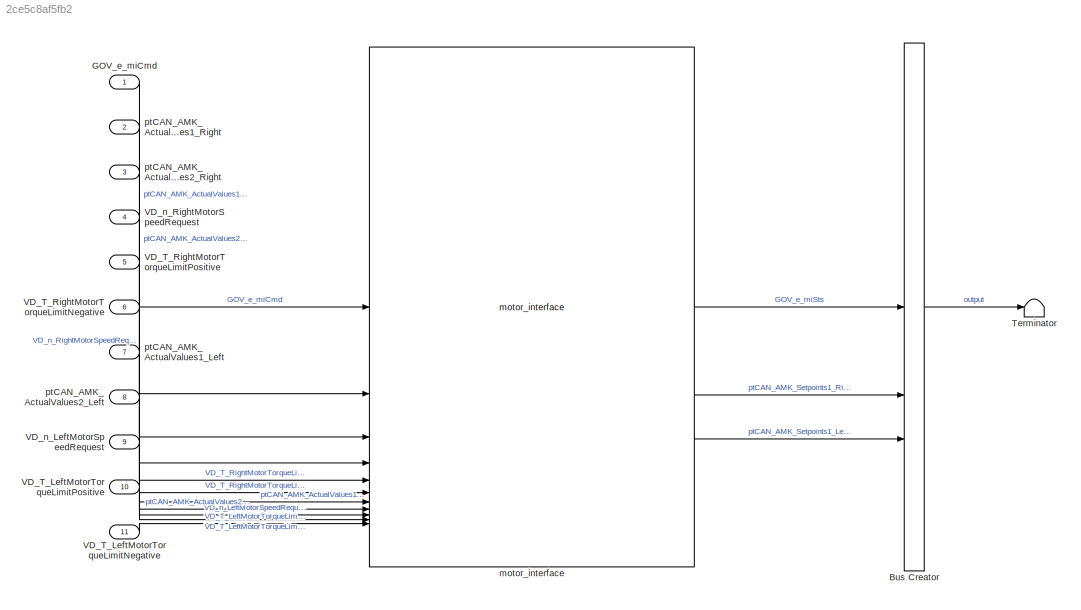
MODEL slx_2ce5c8af5fb2
KIND model
CONFIG AbsTol = auto
CONFIG EnableMultiTasking = off
CONFIG FixedStep = 1e-3
CONFIG MaxStep = auto
CONFIG MinStep = auto
CONFIG RelTol = 1e-3
CONFIG SampleTimeConstraint = Unconstrained
CONFIG SolverName = FixedStepAuto
CONFIG StartTime = 0.0
CONFIG StopTime = 10.0
BLOCK [BusCreator] Bus Creator
  DisplayOption = bar
  InheritFromInputs = on
  Inputs = 3
BLOCK [Inport] GOV_e_miCmd
  Interpolate = off
BLOCK [Terminator] Terminator
BLOCK [Inport] VD_T_LeftMotorTorqueLimitNegative
  OutDataTypeStr = single
  Port = 11
BLOCK [Inport] VD_T_LeftMotorTorqueLimitPositive
  OutDataTypeStr = single
  Port = 10
BLOCK [Inport] VD_T_RightMotorTorqueLimitNegative
  OutDataTypeStr = single
  Port = 6
BLOCK [Inport] VD_T_RightMotorTorqueLimitPositive
  OutDataTypeStr = single
  Port = 5
BLOCK [Inport] VD_n_LeftMotorSpeedRequest
  OutDataTypeStr = single
  Port = 9
BLOCK [Inport] VD_n_RightMotorSpeedRequest
  OutDataTypeStr = single
  Port = 4
BLOCK [Reference] motor_interface  REF=motor_interface_lib/motor_interface  (lib defined in slx_5f2d46c379c1, slx_6012f76cf487)
  SourceBlock = motor_interface_lib/motor_interface
  SourceType = SubSystem
BLOCK [Inport] ptCAN_AMK_ActualValues1_Left
  OutDataTypeStr = Bus: ptCAN_AMK_ActualValues1_Left_bus
  Port = 7
BLOCK [Inport] ptCAN_AMK_ActualValues1_Right
  OutDataTypeStr = Bus: ptCAN_AMK_ActualValues1_Right_bus
  Port = 2
BLOCK [Inport] ptCAN_AMK_ActualValues2_Left
  OutDataTypeStr = Bus: ptCAN_AMK_ActualValues2_Left_bus
  Port = 8
BLOCK [Inport] ptCAN_AMK_ActualValues2_Right
  OutDataTypeStr = Bus: ptCAN_AMK_ActualValues2_Right_bus
  Port = 3
LINE Bus Creator:1 -> Terminator:1
LINE GOV_e_miCmd:1 -> motor_interface:1
LINE VD_T_LeftMotorTorqueLimitNegative:1 -> motor_interface:11
LINE VD_T_LeftMotorTorqueLimitPositive:1 -> motor_interface:10
LINE VD_T_RightMotorTorqueLimitNegative:1 -> motor_interface:6
LINE VD_T_RightMotorTorqueLimitPositive:1 -> motor_interface:5
LINE VD_n_LeftMotorSpeedRequest:1 -> motor_interface:9
LINE VD_n_RightMotorSpeedRequest:1 -> motor_interface:4
LINE motor_interface:1 -> Bus Creator:1
LINE motor_interface:2 -> Bus Creator:2
LINE motor_interface:3 -> Bus Creator:3
LINE ptCAN_AMK_ActualValues1_Left:1 -> motor_interface:7
LINE ptCAN_AMK_ActualValues1_Right:1 -> motor_interface:2
LINE ptCAN_AMK_ActualValues2_Left:1 -> motor_interface:8
LINE ptCAN_AMK_ActualValues2_Right:1 -> motor_interface:3
